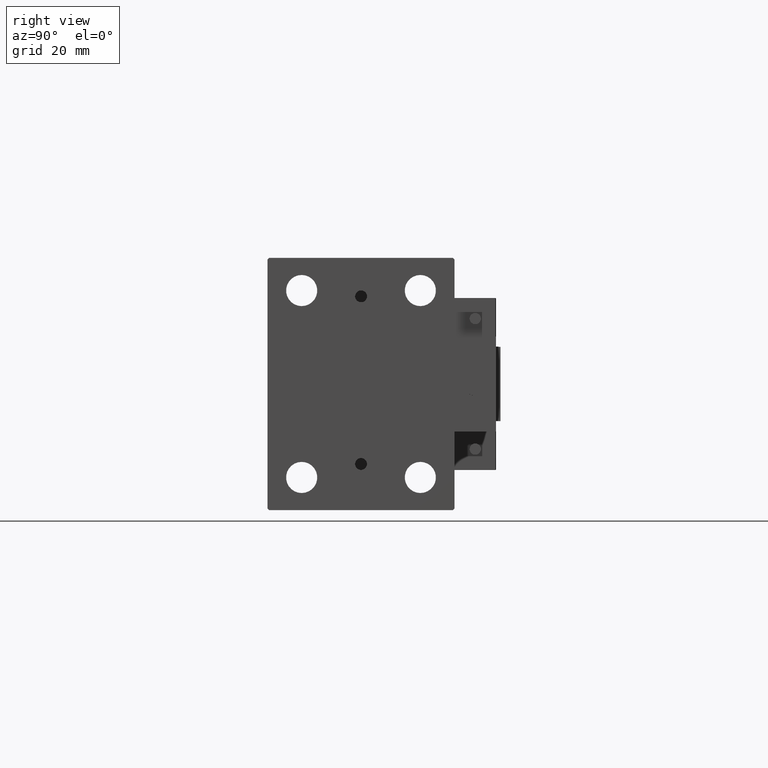
[diagram: clean part render]
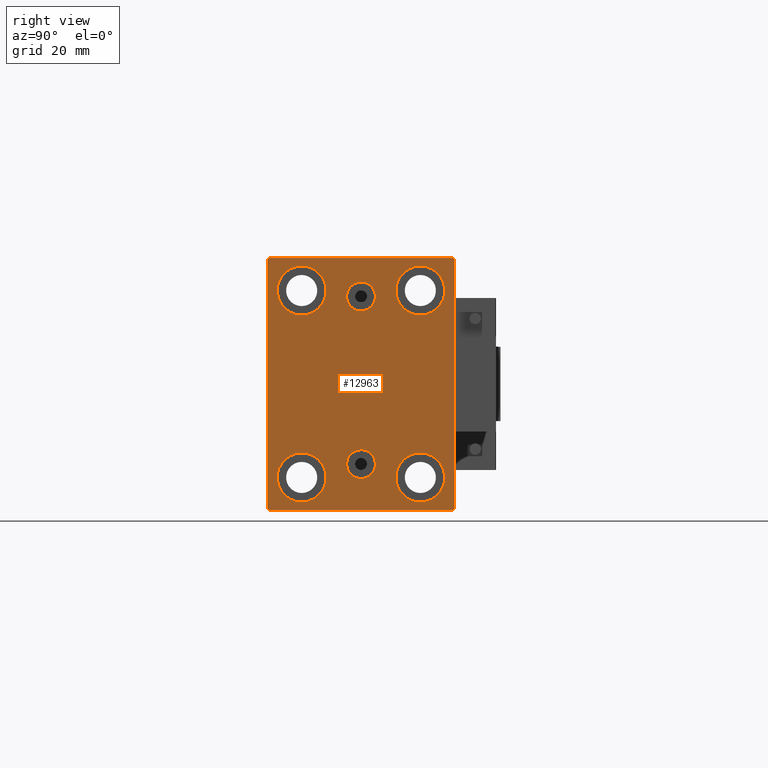
[diagram: same view with one face highlighted and labeled with its STEP entity id]
A machine part, right view. The second image highlights one B-rep face of the part: STEP entity #12963.
In plain terms, the highlighted planar face has unit normal (1, 0, 0).
Its self-contained STEP definition (entity closure, byte-faithful):
#350 = EDGE_LOOP ( 'NONE', ( #23199, #47537 ) ) ;
#635 = DIRECTION ( 'NONE',  ( 1.000000000000000000, 0.000000000000000000, 0.000000000000000000 ) ) ;
#654 = ORIENTED_EDGE ( 'NONE', *, *, #23194, .T. ) ;
#696 = CIRCLE ( 'NONE', #7972, 8.249999999999992895 ) ;
#807 = AXIS2_PLACEMENT_3D ( 'NONE', #46211, #23933, #20146 ) ;
#1143 = FACE_BOUND ( 'NONE', #27825, .T. ) ;
#1350 = DIRECTION ( 'NONE',  ( -1.000000000000000000, -0.000000000000000000, -0.000000000000000000 ) ) ;
#1893 = DIRECTION ( 'NONE',  ( 0.000000000000000000, 0.000000000000000000, -1.000000000000000000 ) ) ;
#2470 = CARTESIAN_POINT ( 'NONE',  ( 143.0000000000000000, 31.50000000000001421, -42.50000000000000711 ) ) ;
#2547 = ORIENTED_EDGE ( 'NONE', *, *, #36110, .T. ) ;
#2643 = CARTESIAN_POINT ( 'NONE',  ( 143.0000000000000000, -2.976515330312223011E-15, 34.36000000000000654 ) ) ;
#2687 = DIRECTION ( 'NONE',  ( -1.000000000000000000, -0.000000000000000000, -0.000000000000000000 ) ) ;
#2721 = DIRECTION ( 'NONE',  ( 0.000000000000000000, -1.632680918566406300E-16, 1.000000000000000000 ) ) ;
#2979 = EDGE_LOOP ( 'NONE', ( #47489, #24631 ) ) ;
#3116 = VERTEX_POINT ( 'NONE', #44854 ) ;
#3426 = CARTESIAN_POINT ( 'NONE',  ( 143.0000000000000000, -19.99999999999999645, 31.50000000000000000 ) ) ;
#3652 = EDGE_CURVE ( 'NONE', #21914, #35605, #31588, .T. ) ;
#3668 = VERTEX_POINT ( 'NONE', #2643 ) ;
#3789 = VERTEX_POINT ( 'NONE', #20579 ) ;
#4284 = CARTESIAN_POINT ( 'NONE',  ( 143.0000000000000000, 19.99999999999999645, -31.49999999999999289 ) ) ;
#4385 = LINE ( 'NONE', #19831, #47967 ) ;
#4573 = VERTEX_POINT ( 'NONE', #41695 ) ;
#5046 = CARTESIAN_POINT ( 'NONE',  ( 143.0000000000000000, -31.50000000000000000, 41.99999999999996447 ) ) ;
#5090 = LINE ( 'NONE', #47605, #26102 ) ;
#5204 = PLANE ( 'NONE',  #35859 ) ;
#5465 = DIRECTION ( 'NONE',  ( 0.000000000000000000, 0.000000000000000000, 1.000000000000000000 ) ) ;
#5476 = VERTEX_POINT ( 'NONE', #19582 ) ;
#5716 = DIRECTION ( 'NONE',  ( -1.000000000000000000, -0.000000000000000000, -0.000000000000000000 ) ) ;
#6216 = CARTESIAN_POINT ( 'NONE',  ( 143.0000000000000000, 20.00000000000000355, 39.74999999999999289 ) ) ;
#6246 = CARTESIAN_POINT ( 'NONE',  ( 143.0000000000000000, -36.74999999999997868, 36.74999999999997868 ) ) ;
#6276 = CARTESIAN_POINT ( 'NONE',  ( 143.0000000000000000, 20.00000000000000355, 31.50000000000000000 ) ) ;
#6724 = VERTEX_POINT ( 'NONE', #8632 ) ;
#7543 = EDGE_CURVE ( 'NONE', #42317, #11761, #5090, .T. ) ;
#7972 = AXIS2_PLACEMENT_3D ( 'NONE', #6276, #48794, #21218 ) ;
#8072 = DIRECTION ( 'NONE',  ( 0.000000000000000000, 0.000000000000000000, 1.000000000000000000 ) ) ;
#8232 = FACE_OUTER_BOUND ( 'NONE', #39305, .T. ) ;
#8426 = CARTESIAN_POINT ( 'NONE',  ( 143.0000000000000000, -31.00000000000000000, -42.50000000000000711 ) ) ;
#8632 = CARTESIAN_POINT ( 'NONE',  ( 143.0000000000000000, -19.99999999999999645, 39.74999999999999289 ) ) ;
#8989 = FACE_BOUND ( 'NONE', #350, .T. ) ;
#9233 = LINE ( 'NONE', #29463, #20621 ) ;
#10232 = DIRECTION ( 'NONE',  ( -0.000000000000000000, -0.7071067811865279218, 0.7071067811865671127 ) ) ;
#10788 = CIRCLE ( 'NONE', #33438, 8.249999999999992895 ) ;
#11030 = CARTESIAN_POINT ( 'NONE',  ( 143.0000000000000000, 36.75000000000001421, -36.75000000000001421 ) ) ;
#11086 = DIRECTION ( 'NONE',  ( 0.000000000000000000, 0.000000000000000000, -1.000000000000000000 ) ) ;
#11271 = VERTEX_POINT ( 'NONE', #5046 ) ;
#11325 = CIRCLE ( 'NONE', #807, 4.859999999999995879 ) ;
#11456 = CARTESIAN_POINT ( 'NONE',  ( 143.0000000000000000, 3.306546357697852550E-15, -31.85999999999998522 ) ) ;
#11586 = CARTESIAN_POINT ( 'NONE',  ( 143.0000000000000000, -3.571693674697836683E-15, 29.50000000000001066 ) ) ;
#11761 = VERTEX_POINT ( 'NONE', #8426 ) ;
#11777 = EDGE_CURVE ( 'NONE', #11761, #47673, #4385, .T. ) ;
#12034 = FACE_BOUND ( 'NONE', #40032, .T. ) ;
#12117 = DIRECTION ( 'NONE',  ( -1.000000000000000000, -0.000000000000000000, -0.000000000000000000 ) ) ;
#12692 = DIRECTION ( 'NONE',  ( -0.000000000000000000, 0.7071067811865671127, -0.7071067811865279218 ) ) ;
#12921 = EDGE_CURVE ( 'NONE', #3789, #29813, #23670, .T. ) ;
#12963 = ADVANCED_FACE ( 'NONE', ( #43666, #31274, #39880, #1143, #8989, #12034, #8232 ), #5204, .T. ) ;
#13006 = CARTESIAN_POINT ( 'NONE',  ( 143.0000000000000000, -3.571693674697836683E-15, 29.50000000000001066 ) ) ;
#13818 = CARTESIAN_POINT ( 'NONE',  ( 143.0000000000000000, 3.306546357697852550E-15, -26.99999999999998934 ) ) ;
#13863 = ORIENTED_EDGE ( 'NONE', *, *, #35816, .T. ) ;
#13970 = EDGE_CURVE ( 'NONE', #6724, #29121, #38317, .T. ) ;
#14188 = CIRCLE ( 'NONE', #38460, 4.859999999999995879 ) ;
#14284 = ORIENTED_EDGE ( 'NONE', *, *, #3652, .T. ) ;
#14656 = AXIS2_PLACEMENT_3D ( 'NONE', #45666, #14785, #37582 ) ;
#14785 = DIRECTION ( 'NONE',  ( -1.000000000000000000, -0.000000000000000000, -0.000000000000000000 ) ) ;
#14799 = DIRECTION ( 'NONE',  ( 0.000000000000000000, 0.000000000000000000, 1.000000000000000000 ) ) ;
#15379 = EDGE_CURVE ( 'NONE', #4573, #43239, #37147, .T. ) ;
#15516 = DIRECTION ( 'NONE',  ( 0.000000000000000000, 1.000000000000000000, 0.000000000000000000 ) ) ;
#15575 = DIRECTION ( 'NONE',  ( -0.000000000000000000, 0.7071067811865474617, 0.7071067811865474617 ) ) ;
#15607 = EDGE_CURVE ( 'NONE', #21756, #15872, #30328, .T. ) ;
#15619 = ORIENTED_EDGE ( 'NONE', *, *, #50005, .T. ) ;
#15872 = VERTEX_POINT ( 'NONE', #49470 ) ;
#16594 = ORIENTED_EDGE ( 'NONE', *, *, #15607, .T. ) ;
#16694 = EDGE_CURVE ( 'NONE', #5476, #36169, #14188, .T. ) ;
#17121 = CARTESIAN_POINT ( 'NONE',  ( 143.0000000000000000, -19.99999999999999645, 23.25000000000000355 ) ) ;
#17434 = ORIENTED_EDGE ( 'NONE', *, *, #45220, .T. ) ;
#18206 = AXIS2_PLACEMENT_3D ( 'NONE', #20395, #5716, #5465 ) ;
#18391 = DIRECTION ( 'NONE',  ( 0.000000000000000000, 0.000000000000000000, 1.000000000000000000 ) ) ;
#19270 = CARTESIAN_POINT ( 'NONE',  ( 143.0000000000000000, 19.99999999999999645, -39.74999999999999289 ) ) ;
#19339 = CARTESIAN_POINT ( 'NONE',  ( 143.0000000000000000, -19.99999999999999645, 31.50000000000000000 ) ) ;
#19582 = CARTESIAN_POINT ( 'NONE',  ( 143.0000000000000000, 3.901724702083465828E-15, -22.13999999999999346 ) ) ;
#19831 = CARTESIAN_POINT ( 'NONE',  ( 143.0000000000000000, -31.50000000000000000, -42.50000000000000711 ) ) ;
#20146 = DIRECTION ( 'NONE',  ( 0.000000000000000000, 0.000000000000000000, 1.000000000000000000 ) ) ;
#20323 = AXIS2_PLACEMENT_3D ( 'NONE', #13006, #28433, #28697 ) ;
#20395 = CARTESIAN_POINT ( 'NONE',  ( 143.0000000000000000, 19.99999999999999645, -31.49999999999999289 ) ) ;
#20579 = CARTESIAN_POINT ( 'NONE',  ( 143.0000000000000000, 31.00000000000002842, 42.50000000000000711 ) ) ;
#20621 = VECTOR ( 'NONE', #10232, 1000.000000000000000 ) ;
#20640 = DIRECTION ( 'NONE',  ( 0.000000000000000000, 0.000000000000000000, -1.000000000000000000 ) ) ;
#21218 = DIRECTION ( 'NONE',  ( 0.000000000000000000, 0.000000000000000000, 1.000000000000000000 ) ) ;
#21389 = VECTOR ( 'NONE', #15575, 1000.000000000000114 ) ;
#21391 = CARTESIAN_POINT ( 'NONE',  ( 143.0000000000000000, -31.50000000000000000, 42.49999999999999289 ) ) ;
#21686 = DIRECTION ( 'NONE',  ( 0.000000000000000000, -0.7071067811865474617, -0.7071067811865474617 ) ) ;
#21756 = VERTEX_POINT ( 'NONE', #19270 ) ;
#21914 = VERTEX_POINT ( 'NONE', #24561 ) ;
#22021 = AXIS2_PLACEMENT_3D ( 'NONE', #11586, #34851, #11086 ) ;
#22471 = EDGE_CURVE ( 'NONE', #3116, #32040, #696, .T. ) ;
#23194 = EDGE_CURVE ( 'NONE', #15872, #21756, #47558, .T. ) ;
#23199 = ORIENTED_EDGE ( 'NONE', *, *, #22471, .T. ) ;
#23663 = EDGE_LOOP ( 'NONE', ( #16594, #654 ) ) ;
#23670 = LINE ( 'NONE', #46711, #48806 ) ;
#23933 = DIRECTION ( 'NONE',  ( 1.000000000000000000, 0.000000000000000000, -0.000000000000000000 ) ) ;
#24561 = CARTESIAN_POINT ( 'NONE',  ( 143.0000000000000000, -20.00000000000000355, -23.24999999999999289 ) ) ;
#24575 = ORIENTED_EDGE ( 'NONE', *, *, #43838, .T. ) ;
#24631 = ORIENTED_EDGE ( 'NONE', *, *, #35479, .F. ) ;
#24952 = DIRECTION ( 'NONE',  ( 1.000000000000000000, 0.000000000000000000, -0.000000000000000000 ) ) ;
#26102 = VECTOR ( 'NONE', #12692, 1000.000000000000000 ) ;
#26194 = EDGE_CURVE ( 'NONE', #36169, #5476, #11325, .T. ) ;
#26457 = DIRECTION ( 'NONE',  ( 0.000000000000000000, 0.000000000000000000, 1.000000000000000000 ) ) ;
#27825 = EDGE_LOOP ( 'NONE', ( #33823, #39874 ) ) ;
#28433 = DIRECTION ( 'NONE',  ( 1.000000000000000000, 0.000000000000000000, 0.000000000000000000 ) ) ;
#28499 = CARTESIAN_POINT ( 'NONE',  ( 143.0000000000000000, -30.99999999999997158, 42.49999999999999289 ) ) ;
#28697 = DIRECTION ( 'NONE',  ( 0.000000000000000000, 0.000000000000000000, -1.000000000000000000 ) ) ;
#29121 = VERTEX_POINT ( 'NONE', #17121 ) ;
#29463 = CARTESIAN_POINT ( 'NONE',  ( 143.0000000000000000, 36.75000000000088107, 36.74999999999884182 ) ) ;
#29468 = LINE ( 'NONE', #21391, #44688 ) ;
#29767 = CARTESIAN_POINT ( 'NONE',  ( 143.0000000000000000, 20.00000000000000355, 31.50000000000000000 ) ) ;
#29813 = VERTEX_POINT ( 'NONE', #28499 ) ;
#30328 = CIRCLE ( 'NONE', #18206, 8.250000000000000000 ) ;
#30431 = ORIENTED_EDGE ( 'NONE', *, *, #26194, .F. ) ;
#30624 = AXIS2_PLACEMENT_3D ( 'NONE', #4284, #12117, #8072 ) ;
#30756 = LINE ( 'NONE', #11030, #21389 ) ;
#31274 = FACE_BOUND ( 'NONE', #35329, .T. ) ;
#31576 = CARTESIAN_POINT ( 'NONE',  ( 143.0000000000000000, -31.50000000000000000, -42.00000000000003553 ) ) ;
#31588 = CIRCLE ( 'NONE', #14656, 8.250000000000000000 ) ;
#32040 = VERTEX_POINT ( 'NONE', #6216 ) ;
#32738 = CARTESIAN_POINT ( 'NONE',  ( 143.0000000000000000, -20.00000000000000355, -31.49999999999999289 ) ) ;
#32836 = ORIENTED_EDGE ( 'NONE', *, *, #16694, .F. ) ;
#33028 = CARTESIAN_POINT ( 'NONE',  ( 143.0000000000000000, -3.571693674697836683E-15, 24.64000000000001123 ) ) ;
#33047 = EDGE_CURVE ( 'NONE', #48987, #3668, #46988, .T. ) ;
#33438 = AXIS2_PLACEMENT_3D ( 'NONE', #3426, #2687, #26457 ) ;
#33823 = ORIENTED_EDGE ( 'NONE', *, *, #37628, .T. ) ;
#33865 = ORIENTED_EDGE ( 'NONE', *, *, #15379, .T. ) ;
#34327 = VECTOR ( 'NONE', #2721, 1000.000000000000000 ) ;
#34720 = CARTESIAN_POINT ( 'NONE',  ( 143.0000000000000000, 31.50000000000000000, 42.00000000000000711 ) ) ;
#34851 = DIRECTION ( 'NONE',  ( 1.000000000000000000, 0.000000000000000000, 0.000000000000000000 ) ) ;
#35329 = EDGE_LOOP ( 'NONE', ( #30431, #32836 ) ) ;
#35390 = ORIENTED_EDGE ( 'NONE', *, *, #12921, .T. ) ;
#35479 = EDGE_CURVE ( 'NONE', #3668, #48987, #40614, .T. ) ;
#35605 = VERTEX_POINT ( 'NONE', #47259 ) ;
#35816 = EDGE_CURVE ( 'NONE', #29813, #11271, #40181, .T. ) ;
#35859 = AXIS2_PLACEMENT_3D ( 'NONE', #39128, #635, #20640 ) ;
#35890 = EDGE_CURVE ( 'NONE', #32040, #3116, #43046, .T. ) ;
#36110 = EDGE_CURVE ( 'NONE', #11271, #42317, #29468, .T. ) ;
#36169 = VERTEX_POINT ( 'NONE', #11456 ) ;
#37147 = LINE ( 'NONE', #2470, #34327 ) ;
#37303 = CIRCLE ( 'NONE', #38911, 8.250000000000000000 ) ;
#37582 = DIRECTION ( 'NONE',  ( 0.000000000000000000, 0.000000000000000000, 1.000000000000000000 ) ) ;
#37628 = EDGE_CURVE ( 'NONE', #29121, #6724, #10788, .T. ) ;
#38075 = DIRECTION ( 'NONE',  ( -1.000000000000000000, -0.000000000000000000, -0.000000000000000000 ) ) ;
#38208 = VECTOR ( 'NONE', #21686, 1000.000000000000114 ) ;
#38317 = CIRCLE ( 'NONE', #39957, 8.249999999999992895 ) ;
#38460 = AXIS2_PLACEMENT_3D ( 'NONE', #13818, #24952, #44449 ) ;
#38911 = AXIS2_PLACEMENT_3D ( 'NONE', #32738, #1350, #47662 ) ;
#39128 = CARTESIAN_POINT ( 'NONE',  ( 143.0000000000000000, 0.000000000000000000, 0.000000000000000000 ) ) ;
#39305 = EDGE_LOOP ( 'NONE', ( #35390, #13863, #2547, #43744, #43070, #24575, #33865, #17434 ) ) ;
#39874 = ORIENTED_EDGE ( 'NONE', *, *, #13970, .T. ) ;
#39880 = FACE_BOUND ( 'NONE', #23663, .T. ) ;
#39957 = AXIS2_PLACEMENT_3D ( 'NONE', #19339, #38075, #14799 ) ;
#40032 = EDGE_LOOP ( 'NONE', ( #15619, #14284 ) ) ;
#40181 = LINE ( 'NONE', #6246, #38208 ) ;
#40614 = CIRCLE ( 'NONE', #22021, 4.859999999999999432 ) ;
#41424 = AXIS2_PLACEMENT_3D ( 'NONE', #29767, #45212, #18391 ) ;
#41695 = CARTESIAN_POINT ( 'NONE',  ( 143.0000000000000000, 31.50000000000001421, -42.00000000000000711 ) ) ;
#42317 = VERTEX_POINT ( 'NONE', #31576 ) ;
#43046 = CIRCLE ( 'NONE', #41424, 8.249999999999992895 ) ;
#43070 = ORIENTED_EDGE ( 'NONE', *, *, #11777, .T. ) ;
#43239 = VERTEX_POINT ( 'NONE', #34720 ) ;
#43419 = DIRECTION ( 'NONE',  ( 0.000000000000000000, -1.000000000000000000, -2.202823461557850341E-16 ) ) ;
#43473 = CARTESIAN_POINT ( 'NONE',  ( 143.0000000000000000, 31.00000000000001421, -42.50000000000000711 ) ) ;
#43666 = FACE_BOUND ( 'NONE', #2979, .T. ) ;
#43744 = ORIENTED_EDGE ( 'NONE', *, *, #7543, .T. ) ;
#43838 = EDGE_CURVE ( 'NONE', #47673, #4573, #30756, .T. ) ;
#44449 = DIRECTION ( 'NONE',  ( 0.000000000000000000, 0.000000000000000000, 1.000000000000000000 ) ) ;
#44688 = VECTOR ( 'NONE', #1893, 1000.000000000000000 ) ;
#44854 = CARTESIAN_POINT ( 'NONE',  ( 143.0000000000000000, 20.00000000000000355, 23.25000000000000355 ) ) ;
#45212 = DIRECTION ( 'NONE',  ( -1.000000000000000000, -0.000000000000000000, -0.000000000000000000 ) ) ;
#45220 = EDGE_CURVE ( 'NONE', #43239, #3789, #9233, .T. ) ;
#45666 = CARTESIAN_POINT ( 'NONE',  ( 143.0000000000000000, -20.00000000000000355, -31.49999999999999289 ) ) ;
#46211 = CARTESIAN_POINT ( 'NONE',  ( 143.0000000000000000, 3.306546357697852550E-15, -26.99999999999998934 ) ) ;
#46711 = CARTESIAN_POINT ( 'NONE',  ( 143.0000000000000000, 31.50000000000000000, 42.50000000000000711 ) ) ;
#46988 = CIRCLE ( 'NONE', #20323, 4.859999999999999432 ) ;
#47259 = CARTESIAN_POINT ( 'NONE',  ( 143.0000000000000000, -20.00000000000000355, -39.74999999999999289 ) ) ;
#47489 = ORIENTED_EDGE ( 'NONE', *, *, #33047, .F. ) ;
#47537 = ORIENTED_EDGE ( 'NONE', *, *, #35890, .T. ) ;
#47558 = CIRCLE ( 'NONE', #30624, 8.250000000000000000 ) ;
#47605 = CARTESIAN_POINT ( 'NONE',  ( 143.0000000000000000, -36.74999999999914735, -36.75000000000118661 ) ) ;
#47662 = DIRECTION ( 'NONE',  ( 0.000000000000000000, 0.000000000000000000, 1.000000000000000000 ) ) ;
#47673 = VERTEX_POINT ( 'NONE', #43473 ) ;
#47967 = VECTOR ( 'NONE', #15516, 1000.000000000000000 ) ;
#48794 = DIRECTION ( 'NONE',  ( -1.000000000000000000, -0.000000000000000000, -0.000000000000000000 ) ) ;
#48806 = VECTOR ( 'NONE', #43419, 1000.000000000000000 ) ;
#48987 = VERTEX_POINT ( 'NONE', #33028 ) ;
#49470 = CARTESIAN_POINT ( 'NONE',  ( 143.0000000000000000, 19.99999999999999645, -23.24999999999999289 ) ) ;
#50005 = EDGE_CURVE ( 'NONE', #35605, #21914, #37303, .T. ) ;